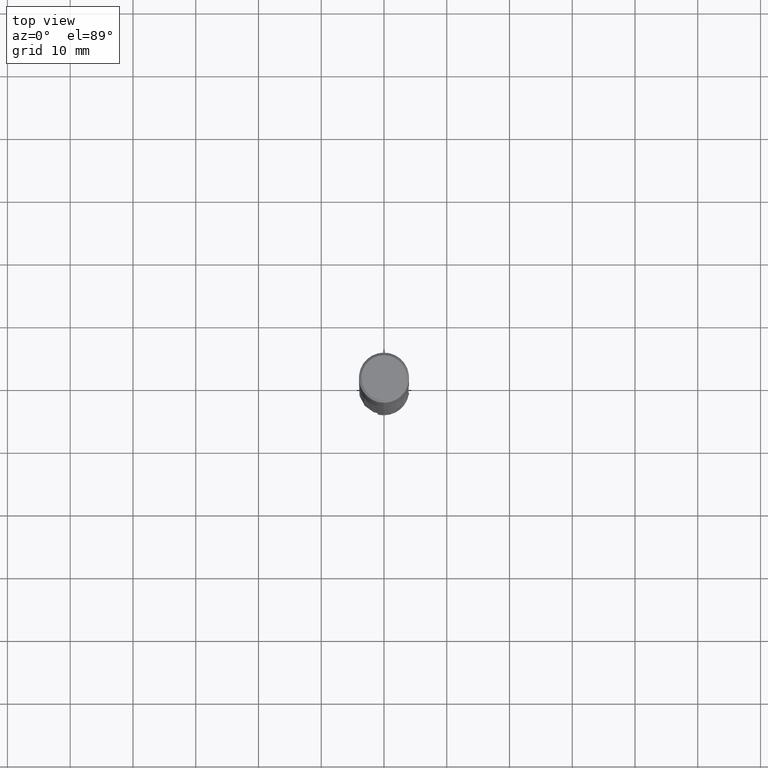
[diagram: clean part render]
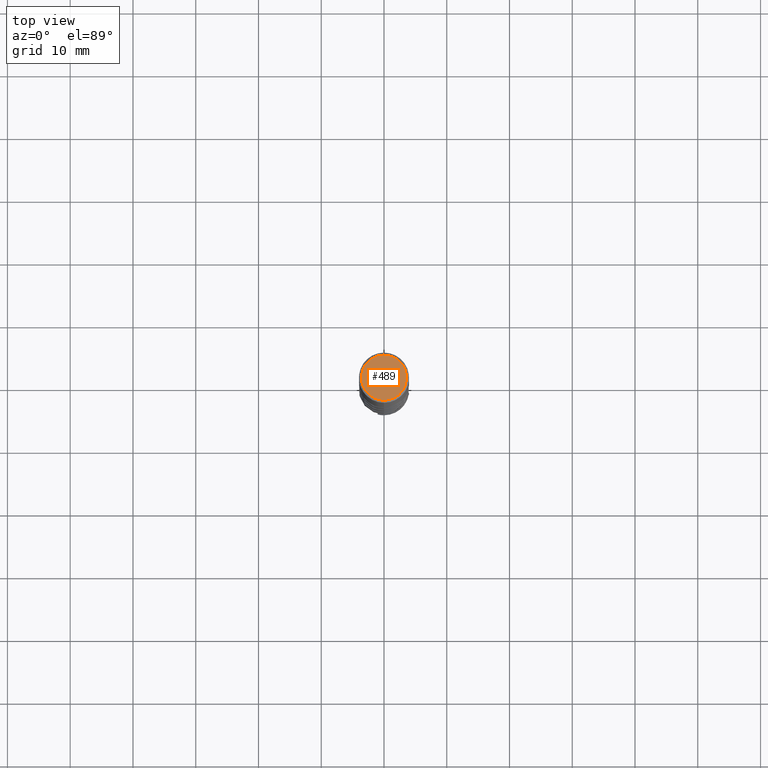
[diagram: same view with one face highlighted and labeled with its STEP entity id]
A machine part, top view. The second image highlights one B-rep face of the part: STEP entity #489.
In plain terms, the highlighted planar face has unit normal (-0, 0, 1).
Its self-contained STEP definition (entity closure, byte-faithful):
#279=VERTEX_POINT('',#778);
#349=EDGE_CURVE('',#279,#581,#857,.T.);
#489=ADVANCED_FACE('',(#1010),#1011,.T.);
#581=VERTEX_POINT('',#1112);
#613=EDGE_CURVE('',#581,#279,#1147,.T.);
#778=CARTESIAN_POINT('',(0.0,3.6,0.0));
#857=CIRCLE('',#2312,3.6);
#1010=FACE_OUTER_BOUND('',#5010,.T.);
#1011=PLANE('',#5011);
#1112=CARTESIAN_POINT('',(4.40858287376056E-016,-3.6,0.0));
#1147=CIRCLE('',#6723,3.6);
#2312=AXIS2_PLACEMENT_3D('',#8602,#8603,#8604);
#5010=EDGE_LOOP('',(#8762,#8763));
#5011=AXIS2_PLACEMENT_3D('',#8764,#8765,#8766);
#6723=AXIS2_PLACEMENT_3D('',#8951,#8952,#8953);
#8602=CARTESIAN_POINT('',(0.0,0.0,0.0));
#8603=DIRECTION('',(0.0,0.0,-1.0));
#8604=DIRECTION('',(0.0,1.0,0.0));
#8762=ORIENTED_EDGE('',*,*,#349,.F.);
#8763=ORIENTED_EDGE('',*,*,#613,.F.);
#8764=CARTESIAN_POINT('',(0.0,1.8,0.0));
#8765=DIRECTION('',(-0.0,0.0,1.0));
#8766=DIRECTION('',(0.0,-1.0,0.0));
#8951=CARTESIAN_POINT('',(0.0,0.0,0.0));
#8952=DIRECTION('',(0.0,0.0,-1.0));
#8953=DIRECTION('',(0.0,1.0,0.0));